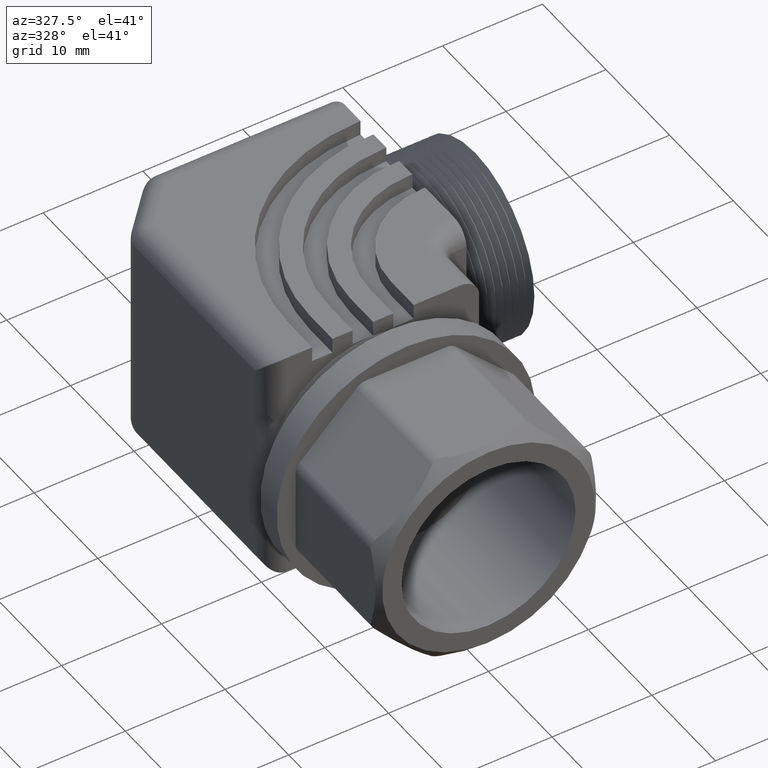
[diagram: clean part render]
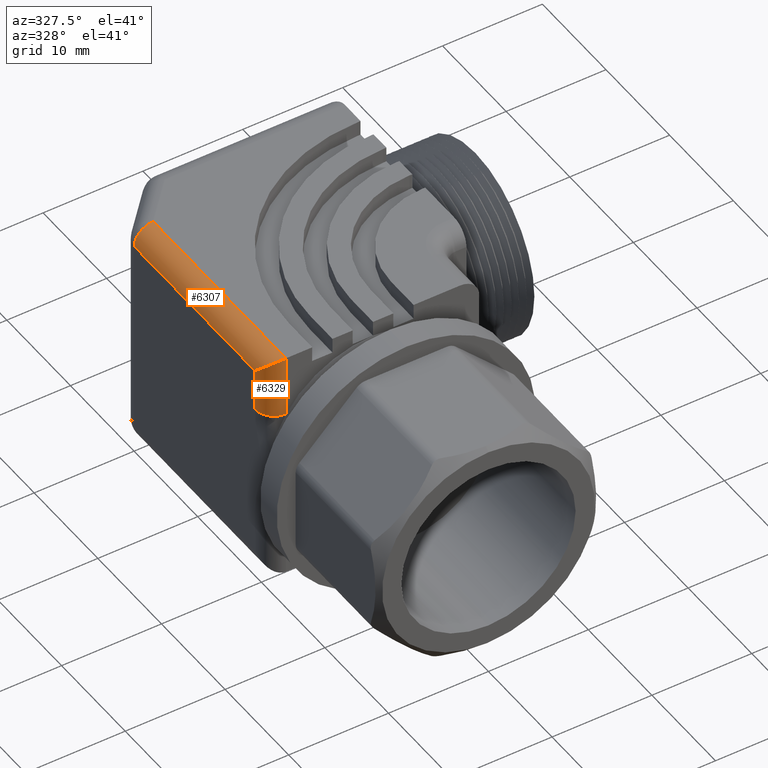
[diagram: same view with one multi-face feature highlighted, each face labeled with its STEP entity id]
A machine part, auxiliary view. The highlighted faces form ONE feature: a constant-radius fillet chain: 2 tangent blend faces with common blend radius 1.905 mm. The faces share edges in the B-rep.
Their STEP definitions:
[1] entity #6329 (Cylinder):
#429 = VERTEX_POINT ( 'NONE', #2401 ) ;
#444 = VERTEX_POINT ( 'NONE', #2442 ) ;
#460 = EDGE_CURVE ( 'NONE', #429, #444, #2476, .T. ) ;
#569 = VERTEX_POINT ( 'NONE', #2654 ) ;
#596 = EDGE_CURVE ( 'NONE', #6431, #569, #2726, .T. ) ;
#2401 = CARTESIAN_POINT ( 'NONE',  ( -0.3430177550000002600, 0.7139999999999999700, 0.4699999999999999700 ) ) ;
#2442 = CARTESIAN_POINT ( 'NONE',  ( -0.3430177550000000900, 0.7140000000000000800, 0.2245858850301147000 ) ) ;
#2473 = DIRECTION ( 'NONE',  ( 0.0000000000000000000, -0.0000000000000000000, -1.000000000000000000 ) ) ;
#2474 = VECTOR ( 'NONE', #2473, 39.37007874015748100 ) ;
#2475 = CARTESIAN_POINT ( 'NONE',  ( -0.3430177550000000900, 0.7140000000000000800, 0.4699999999999999700 ) ) ;
#2476 = LINE ( 'NONE', #2475, #2474 ) ;
#2654 = CARTESIAN_POINT ( 'NONE',  ( -0.4180177550000001000, 0.7890000000000001500, 0.3949999999999999600 ) ) ;
#2723 = DIRECTION ( 'NONE',  ( -0.0000000000000000000, -0.0000000000000000000, 1.000000000000000000 ) ) ;
#2724 = VECTOR ( 'NONE', #2723, 39.37007874015748100 ) ;
#2725 = CARTESIAN_POINT ( 'NONE',  ( -0.4180177550000001000, 0.7890000000000001500, 0.4699999999999999700 ) ) ;
#2726 = LINE ( 'NONE', #2725, #2724 ) ;
#4996 = CARTESIAN_POINT ( 'NONE',  ( -0.4180177550000001000, 0.7890000000000001500, 0.3949999999999999600 ) ) ;
#4999 =( BOUNDED_CURVE ( )  B_SPLINE_CURVE ( 3, ( #4996, #5034, #5033, #5032 ),
 .UNSPECIFIED., .F., .T. ) 
 B_SPLINE_CURVE_WITH_KNOTS ( ( 4, 4 ),
 ( 1.570796326794896600, 3.141592653589790500 ),
 .UNSPECIFIED. ) 
 CURVE ( )  GEOMETRIC_REPRESENTATION_ITEM ( )  RATIONAL_B_SPLINE_CURVE ( ( 1.000000000000000000, 0.8047378541243654900, 0.8047378541243654900, 1.000000000000000000 ) ) 
 REPRESENTATION_ITEM ( '' )  );
#5032 = CARTESIAN_POINT ( 'NONE',  ( -0.3430177550000002600, 0.7139999999999999700, 0.4699999999999999700 ) ) ;
#5033 = CARTESIAN_POINT ( 'NONE',  ( -0.3869517378220180800, 0.7139999999999999700, 0.4699999999999996400 ) ) ;
#5034 = CARTESIAN_POINT ( 'NONE',  ( -0.4180177549999999900, 0.7450660171779822600, 0.4389339828220176800 ) ) ;
#5354 = DIRECTION ( 'NONE',  ( 1.000000000000000000, 0.0000000000000000000, 0.0000000000000000000 ) ) ;
#5355 = DIRECTION ( 'NONE',  ( -0.0000000000000000000, -0.0000000000000000000, 1.000000000000000000 ) ) ;
#5356 = CARTESIAN_POINT ( 'NONE',  ( -0.3430177550000000900, 0.7890000000000014800, 0.2245858850301146500 ) ) ;
#5357 = AXIS2_PLACEMENT_3D ( 'NONE', #5356, #5355, #5354 ) ;
#5361 = CIRCLE ( 'NONE', #5357, 0.07499999999999998300 ) ;
#5453 = DIRECTION ( 'NONE',  ( -1.000000000000000000, 0.0000000000000000000, 0.0000000000000000000 ) ) ;
#5454 = DIRECTION ( 'NONE',  ( 0.0000000000000000000, -0.0000000000000000000, -1.000000000000000000 ) ) ;
#5455 = CARTESIAN_POINT ( 'NONE',  ( -0.3430177550000000900, 0.7890000000000001500, 0.4699999999999999700 ) ) ;
#5456 = AXIS2_PLACEMENT_3D ( 'NONE', #5455, #5454, #5453 ) ;
#5458 = CYLINDRICAL_SURFACE ( 'NONE', #5456, 0.07500000000000002500 ) ;
#5459 = FACE_OUTER_BOUND ( 'NONE', #6330, .T. ) ;
#5649 = CARTESIAN_POINT ( 'NONE',  ( -0.4180177550000001000, 0.7890000000000001500, 0.2245858850301147000 ) ) ;
#6140 = EDGE_CURVE ( 'NONE', #569, #429, #4999, .T. ) ;
#6141 = ORIENTED_EDGE ( 'NONE', *, *, #6140, .F. ) ;
#6142 = ORIENTED_EDGE ( 'NONE', *, *, #460, .F. ) ;
#6144 = ORIENTED_EDGE ( 'NONE', *, *, #6278, .T. ) ;
#6145 = ORIENTED_EDGE ( 'NONE', *, *, #596, .F. ) ;
#6278 = EDGE_CURVE ( 'NONE', #6431, #444, #5361, .T. ) ;
#6329 = ADVANCED_FACE ( 'NONE', ( #5459 ), #5458, .T. ) ;
#6330 = EDGE_LOOP ( 'NONE', ( #6144, #6142, #6141, #6145 ) ) ;
#6431 = VERTEX_POINT ( 'NONE', #5649 ) ;
[2] entity #6307 (Cylinder):
#429 = VERTEX_POINT ( 'NONE', #2401 ) ;
#437 = VERTEX_POINT ( 'NONE', #2455 ) ;
#438 = EDGE_CURVE ( 'NONE', #437, #429, #2450, .T. ) ;
#538 = EDGE_CURVE ( 'NONE', #569, #570, #2589, .T. ) ;
#569 = VERTEX_POINT ( 'NONE', #2654 ) ;
#570 = VERTEX_POINT ( 'NONE', #2649 ) ;
#2401 = CARTESIAN_POINT ( 'NONE',  ( -0.3430177550000002600, 0.7139999999999999700, 0.4699999999999999700 ) ) ;
#2447 = DIRECTION ( 'NONE',  ( 0.0000000000000000000, -1.000000000000000000, 0.0000000000000000000 ) ) ;
#2448 = VECTOR ( 'NONE', #2447, 39.37007874015748100 ) ;
#2449 = CARTESIAN_POINT ( 'NONE',  ( -0.3430177550000000400, 0.7140000000000000800, 0.4699999999999999700 ) ) ;
#2450 = LINE ( 'NONE', #2449, #2448 ) ;
#2455 = CARTESIAN_POINT ( 'NONE',  ( -0.3430177550000000400, 1.536090228801575900, 0.4699999999999999700 ) ) ;
#2581 = DIRECTION ( 'NONE',  ( -0.0000000000000000000, 1.000000000000000000, -0.0000000000000000000 ) ) ;
#2582 = VECTOR ( 'NONE', #2581, 39.37007874015748100 ) ;
#2583 = CARTESIAN_POINT ( 'NONE',  ( -0.4180177550000001000, 1.565433319322712800, 0.3949999999999999600 ) ) ;
#2589 = LINE ( 'NONE', #2583, #2582 ) ;
#2649 = CARTESIAN_POINT ( 'NONE',  ( -0.4180177550000001000, 1.536090228801575900, 0.3949999999999999600 ) ) ;
#2654 = CARTESIAN_POINT ( 'NONE',  ( -0.4180177550000001000, 0.7890000000000001500, 0.3949999999999999600 ) ) ;
#4996 = CARTESIAN_POINT ( 'NONE',  ( -0.4180177550000001000, 0.7890000000000001500, 0.3949999999999999600 ) ) ;
#4999 =( BOUNDED_CURVE ( )  B_SPLINE_CURVE ( 3, ( #4996, #5034, #5033, #5032 ),
 .UNSPECIFIED., .F., .T. ) 
 B_SPLINE_CURVE_WITH_KNOTS ( ( 4, 4 ),
 ( 1.570796326794896600, 3.141592653589790500 ),
 .UNSPECIFIED. ) 
 CURVE ( )  GEOMETRIC_REPRESENTATION_ITEM ( )  RATIONAL_B_SPLINE_CURVE ( ( 1.000000000000000000, 0.8047378541243654900, 0.8047378541243654900, 1.000000000000000000 ) ) 
 REPRESENTATION_ITEM ( '' )  );
#5032 = CARTESIAN_POINT ( 'NONE',  ( -0.3430177550000002600, 0.7139999999999999700, 0.4699999999999999700 ) ) ;
#5033 = CARTESIAN_POINT ( 'NONE',  ( -0.3869517378220180800, 0.7139999999999999700, 0.4699999999999996400 ) ) ;
#5034 = CARTESIAN_POINT ( 'NONE',  ( -0.4180177549999999900, 0.7450660171779822600, 0.4389339828220176800 ) ) ;
#5244 = DIRECTION ( 'NONE',  ( 0.0000000000000000000, 0.0000000000000000000, 1.000000000000000000 ) ) ;
#5245 = DIRECTION ( 'NONE',  ( 0.0000000000000000000, 1.000000000000000000, -0.0000000000000000000 ) ) ;
#5246 = CARTESIAN_POINT ( 'NONE',  ( -0.3430177550000000900, 1.536090228801575900, 0.3949999999999999600 ) ) ;
#5247 = AXIS2_PLACEMENT_3D ( 'NONE', #5246, #5245, #5244 ) ;
#5248 = CIRCLE ( 'NONE', #5247, 0.07500000000000002500 ) ;
#5370 = DIRECTION ( 'NONE',  ( 0.0000000000000000000, 0.0000000000000000000, 1.000000000000000000 ) ) ;
#5371 = DIRECTION ( 'NONE',  ( 0.0000000000000000000, 1.000000000000000000, 0.0000000000000000000 ) ) ;
#5372 = CARTESIAN_POINT ( 'NONE',  ( -0.3430177550000000400, 0.8899999999999999000, 0.3949999999999999600 ) ) ;
#5373 = AXIS2_PLACEMENT_3D ( 'NONE', #5372, #5371, #5370 ) ;
#5374 = CYLINDRICAL_SURFACE ( 'NONE', #5373, 0.07500000000000002500 ) ;
#5379 = FACE_OUTER_BOUND ( 'NONE', #6275, .T. ) ;
#6140 = EDGE_CURVE ( 'NONE', #569, #429, #4999, .T. ) ;
#6220 = EDGE_CURVE ( 'NONE', #570, #437, #5248, .T. ) ;
#6221 = ORIENTED_EDGE ( 'NONE', *, *, #538, .F. ) ;
#6275 = EDGE_LOOP ( 'NONE', ( #6276, #6343, #6344, #6221 ) ) ;
#6276 = ORIENTED_EDGE ( 'NONE', *, *, #6140, .T. ) ;
#6307 = ADVANCED_FACE ( 'NONE', ( #5379 ), #5374, .T. ) ;
#6343 = ORIENTED_EDGE ( 'NONE', *, *, #438, .F. ) ;
#6344 = ORIENTED_EDGE ( 'NONE', *, *, #6220, .F. ) ;